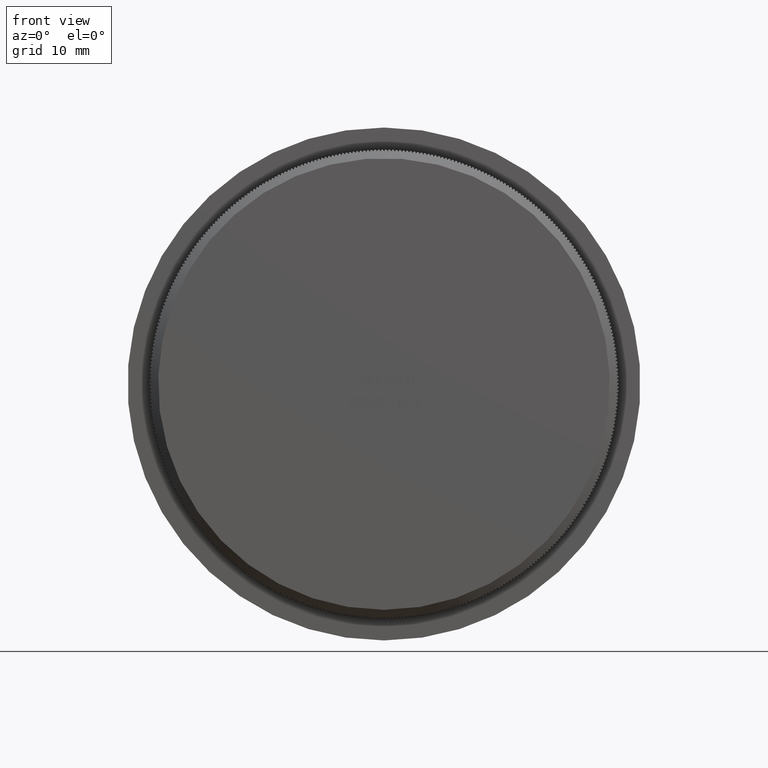
[diagram: clean part render]
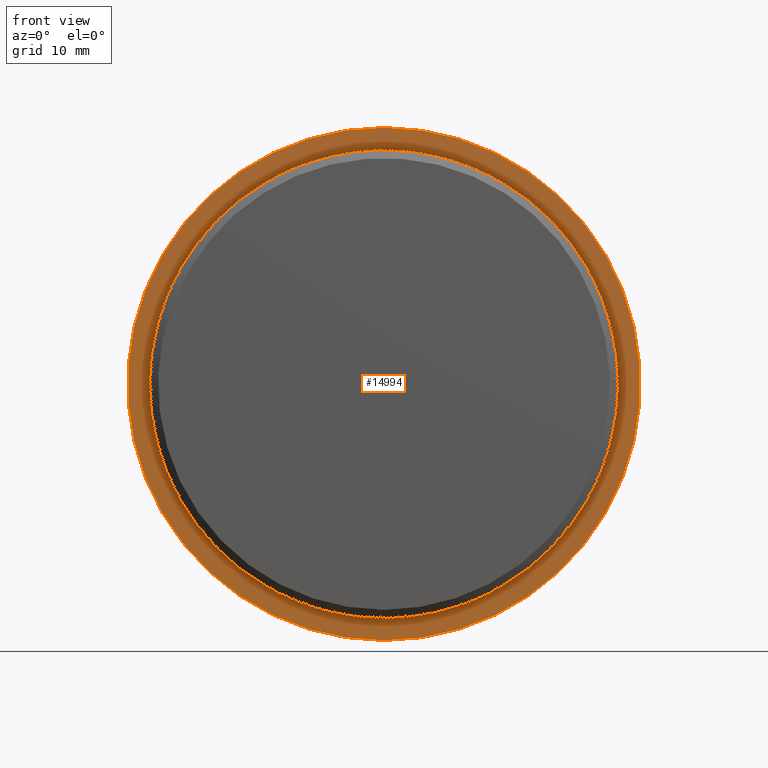
[diagram: same view with one face highlighted and labeled with its STEP entity id]
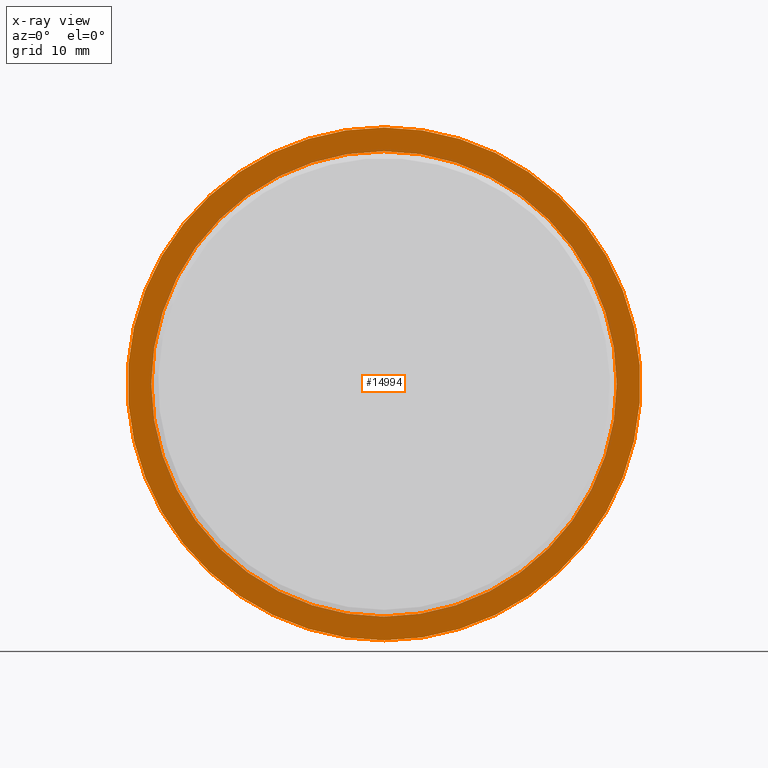
[diagram: x-ray of the same camera — body ghosted, the highlighted face saturated]
A machine part, front view. The second image highlights one B-rep face of the part: STEP entity #14994.
The next image is the same camera in x-ray: the body ghosted, the highlighted face saturated — about 0% of this face is hidden behind the body in this view.
In plain terms, the highlighted planar face has unit normal (0, -1, -0).
Its self-contained STEP definition (entity closure, byte-faithful):
#194 = CARTESIAN_POINT ( 'NONE',  ( 30.14999999999999858, 5.000000000000000000, 0.000000000000000000 ) ) ;
#1582 = CARTESIAN_POINT ( 'NONE',  ( 0.000000000000000000, 5.000000000000000000, -27.35000000000000142 ) ) ;
#2260 = ORIENTED_EDGE ( 'NONE', *, *, #12580, .T. ) ;
#2841 = CIRCLE ( 'NONE', #5096, 30.14999999999999858 ) ;
#4962 = DIRECTION ( 'NONE',  ( 0.000000000000000000, 0.000000000000000000, -1.000000000000000000 ) ) ;
#5096 = AXIS2_PLACEMENT_3D ( 'NONE', #20643, #5171, #4962 ) ;
#5171 = DIRECTION ( 'NONE',  ( -0.000000000000000000, -1.000000000000000000, -0.000000000000000000 ) ) ;
#7132 = AXIS2_PLACEMENT_3D ( 'NONE', #194, #53374, #43129 ) ;
#11828 = VERTEX_POINT ( 'NONE', #56525 ) ;
#11894 = AXIS2_PLACEMENT_3D ( 'NONE', #19404, #18776, #34018 ) ;
#12580 = EDGE_CURVE ( 'NONE', #11828, #11828, #2841, .T. ) ;
#14994 = ADVANCED_FACE ( 'NONE', ( #54924, #59573 ), #38342, .T. ) ;
#18776 = DIRECTION ( 'NONE',  ( -0.000000000000000000, -1.000000000000000000, -0.000000000000000000 ) ) ;
#19404 = CARTESIAN_POINT ( 'NONE',  ( 0.000000000000000000, 5.000000000000000000, 0.000000000000000000 ) ) ;
#20643 = CARTESIAN_POINT ( 'NONE',  ( 0.000000000000000000, 5.000000000000000000, 0.000000000000000000 ) ) ;
#29384 = ORIENTED_EDGE ( 'NONE', *, *, #57613, .F. ) ;
#34018 = DIRECTION ( 'NONE',  ( 0.000000000000000000, 0.000000000000000000, -1.000000000000000000 ) ) ;
#34456 = VERTEX_POINT ( 'NONE', #1582 ) ;
#38342 = PLANE ( 'NONE',  #7132 ) ;
#40772 = CIRCLE ( 'NONE', #11894, 27.35000000000000142 ) ;
#43129 = DIRECTION ( 'NONE',  ( 0.000000000000000000, 0.000000000000000000, -1.000000000000000000 ) ) ;
#49714 = EDGE_LOOP ( 'NONE', ( #2260 ) ) ;
#53374 = DIRECTION ( 'NONE',  ( 0.000000000000000000, -1.000000000000000000, -0.000000000000000000 ) ) ;
#54924 = FACE_BOUND ( 'NONE', #61278, .T. ) ;
#56525 = CARTESIAN_POINT ( 'NONE',  ( 0.000000000000000000, 5.000000000000000000, -30.14999999999999858 ) ) ;
#57613 = EDGE_CURVE ( 'NONE', #34456, #34456, #40772, .T. ) ;
#59573 = FACE_OUTER_BOUND ( 'NONE', #49714, .T. ) ;
#61278 = EDGE_LOOP ( 'NONE', ( #29384 ) ) ;